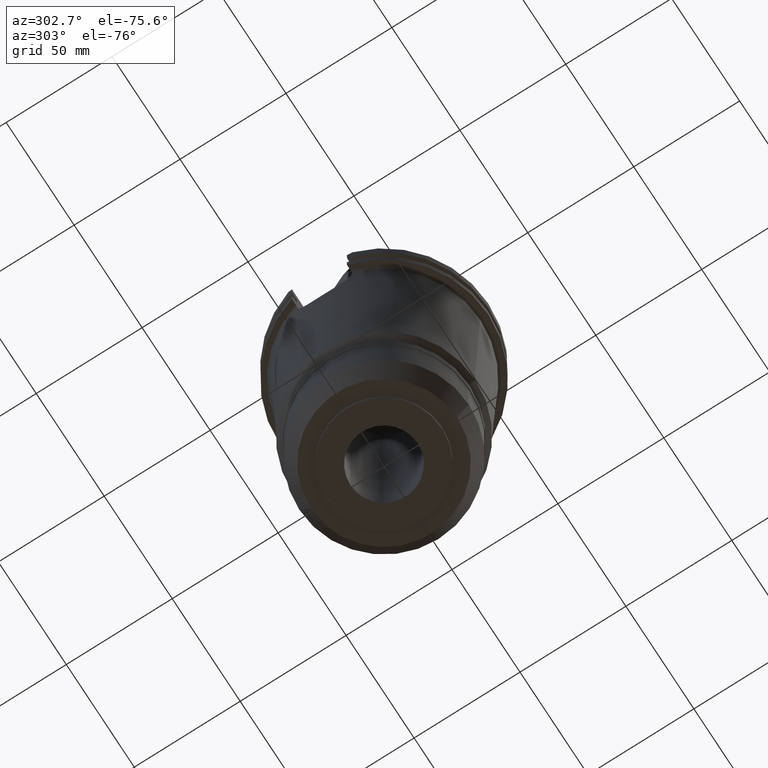
[diagram: clean part render]
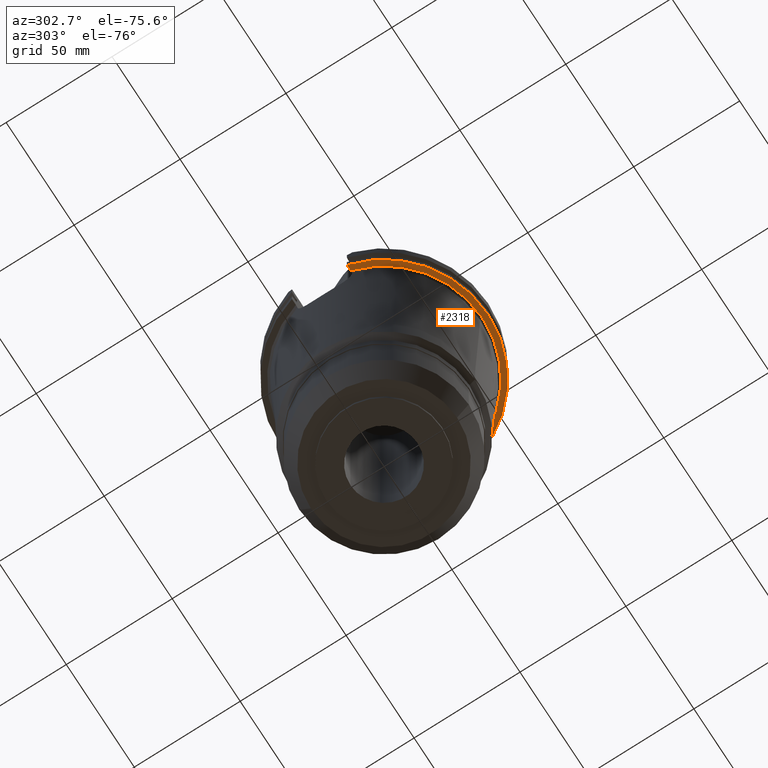
[diagram: same view with one face highlighted and labeled with its STEP entity id]
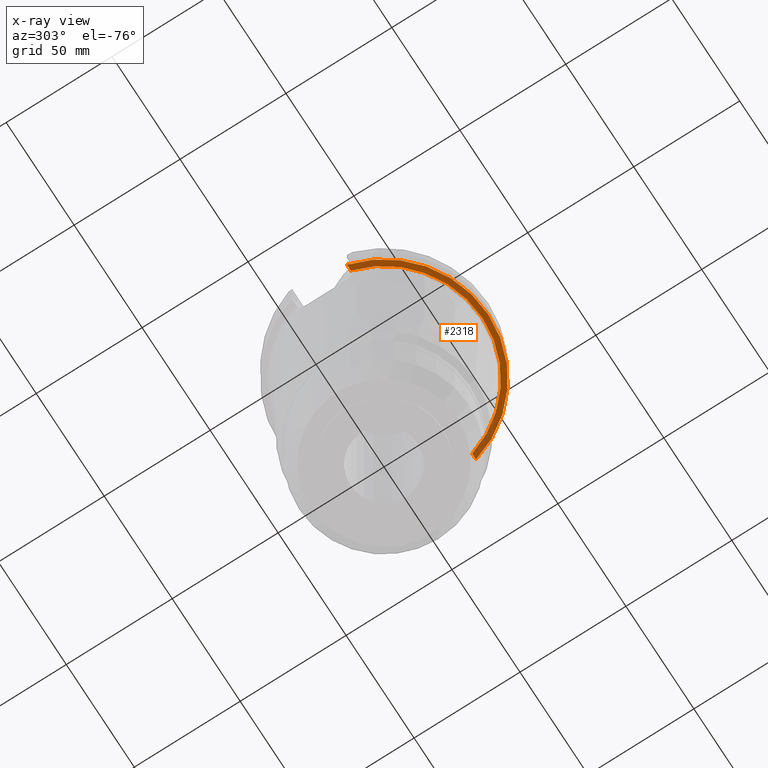
[diagram: x-ray of the same camera — body ghosted, the highlighted face saturated]
A machine part, auxiliary view. The second image highlights one B-rep face of the part: STEP entity #2318.
The next image is the same camera in x-ray: the body ghosted, the highlighted face saturated — about 12% of this face is hidden behind the body in this view.
In plain terms, the highlighted planar face has unit normal (0, 0, -1).
Its self-contained STEP definition (entity closure, byte-faithful):
#755=CARTESIAN_POINT('',(4.462612996847E1,-1.2955E1,-1.905E1));
#760=DIRECTION('',(1.E0,-1.944246586683E-13,0.E0));
#761=VECTOR('',#760,2.850581493567E0);
#762=CARTESIAN_POINT('',(4.462612996847E1,-1.2955E1,-1.905E1));
#763=LINE('',#762,#761);
#809=CARTESIAN_POINT('',(-4.462612996847E1,-1.2955E1,-1.905E1));
#831=CARTESIAN_POINT('',(0.E0,0.E0,-1.905E1));
#832=DIRECTION('',(0.E0,0.E0,-1.E0));
#833=DIRECTION('',(9.603518342902E-1,-2.787908792902E-1,0.E0));
#834=AXIS2_PLACEMENT_3D('',#831,#832,#833);
#839=CARTESIAN_POINT('',(0.E0,0.E0,-1.905E1));
#840=DIRECTION('',(0.E0,0.E0,-1.E0));
#841=DIRECTION('',(0.E0,-1.E0,0.E0));
#842=AXIS2_PLACEMENT_3D('',#839,#840,#841);
#847=DIRECTION('',(-1.E0,-1.956709705828E-13,0.E0));
#848=VECTOR('',#847,2.850581493567E0);
#849=CARTESIAN_POINT('',(-4.462612996847E1,-1.2955E1,-1.905E1));
#850=LINE('',#849,#848);
#854=CARTESIAN_POINT('',(0.E0,2.625887666732E-14,-1.905E1));
#855=DIRECTION('',(0.E0,0.E0,1.E0));
#856=DIRECTION('',(-9.647287063661E-1,-2.632461264923E-1,0.E0));
#857=AXIS2_PLACEMENT_3D('',#854,#855,#856);
#862=CARTESIAN_POINT('',(0.E0,2.625887666732E-14,-1.905E1));
#863=DIRECTION('',(0.E0,0.E0,1.E0));
#864=DIRECTION('',(0.E0,-1.E0,0.E0));
#865=AXIS2_PLACEMENT_3D('',#862,#863,#864);
#1578=VERTEX_POINT('',#755);
#1580=VERTEX_POINT('',#809);
#1581=CARTESIAN_POINT('',(-5.107671617631E-14,-4.646852161370E1,-1.905E1));
#1582=VERTEX_POINT('',#1581);
#1590=CARTESIAN_POINT('',(4.747671146204E1,-1.2955E1,-1.905E1));
#1591=VERTEX_POINT('',#1590);
#1608=CARTESIAN_POINT('',(-4.747671146204E1,-1.2955E1,-1.905E1));
#1609=VERTEX_POINT('',#1608);
#1610=CARTESIAN_POINT('',(0.E0,-4.92125E1,-1.905E1));
#1611=VERTEX_POINT('',#1610);
#2303=CARTESIAN_POINT('',(0.E0,0.E0,-1.905E1));
#2304=DIRECTION('',(0.E0,0.E0,-1.E0));
#2305=DIRECTION('',(0.E0,-1.E0,0.E0));
#2306=AXIS2_PLACEMENT_3D('',#2303,#2304,#2305);
#2307=PLANE('',#2306);
#2308=ORIENTED_EDGE('',*,*,#2236,.F.);
#2309=ORIENTED_EDGE('',*,*,#2271,.T.);
#2310=ORIENTED_EDGE('',*,*,#2269,.T.);
#2311=ORIENTED_EDGE('',*,*,#2281,.T.);
#2313=ORIENTED_EDGE('',*,*,#2312,.T.);
#2315=ORIENTED_EDGE('',*,*,#2314,.T.);
#2316=EDGE_LOOP('',(#2308,#2309,#2310,#2311,#2313,#2315));
#2317=FACE_OUTER_BOUND('',#2316,.F.);
#835=CIRCLE('',#834,4.646852161370E1);
#843=CIRCLE('',#842,4.646852161370E1);
#858=CIRCLE('',#857,4.92125E1);
#866=CIRCLE('',#865,4.92125E1);
#2236=EDGE_CURVE('',#1578,#1591,#763,.T.);
#2269=EDGE_CURVE('',#1582,#1580,#843,.T.);
#2271=EDGE_CURVE('',#1578,#1582,#835,.T.);
#2281=EDGE_CURVE('',#1580,#1609,#850,.T.);
#2312=EDGE_CURVE('',#1609,#1611,#858,.T.);
#2314=EDGE_CURVE('',#1611,#1591,#866,.T.);
#2318=ADVANCED_FACE('',(#2317),#2307,.T.);